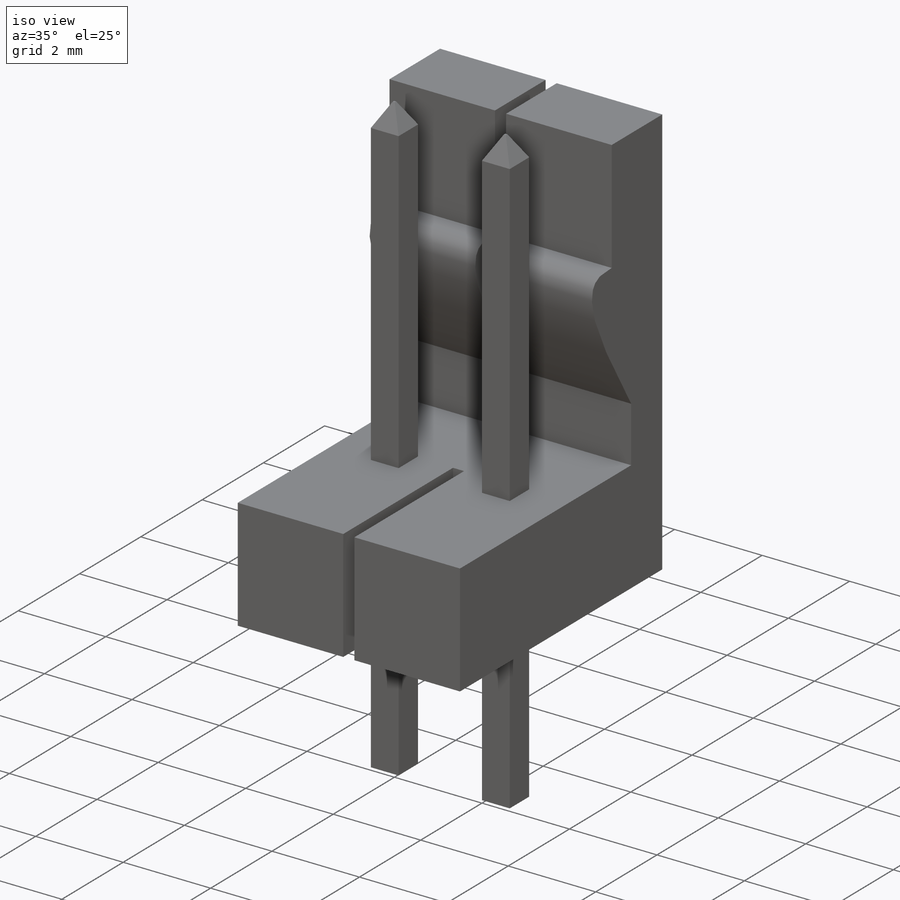
[diagram: iso view]
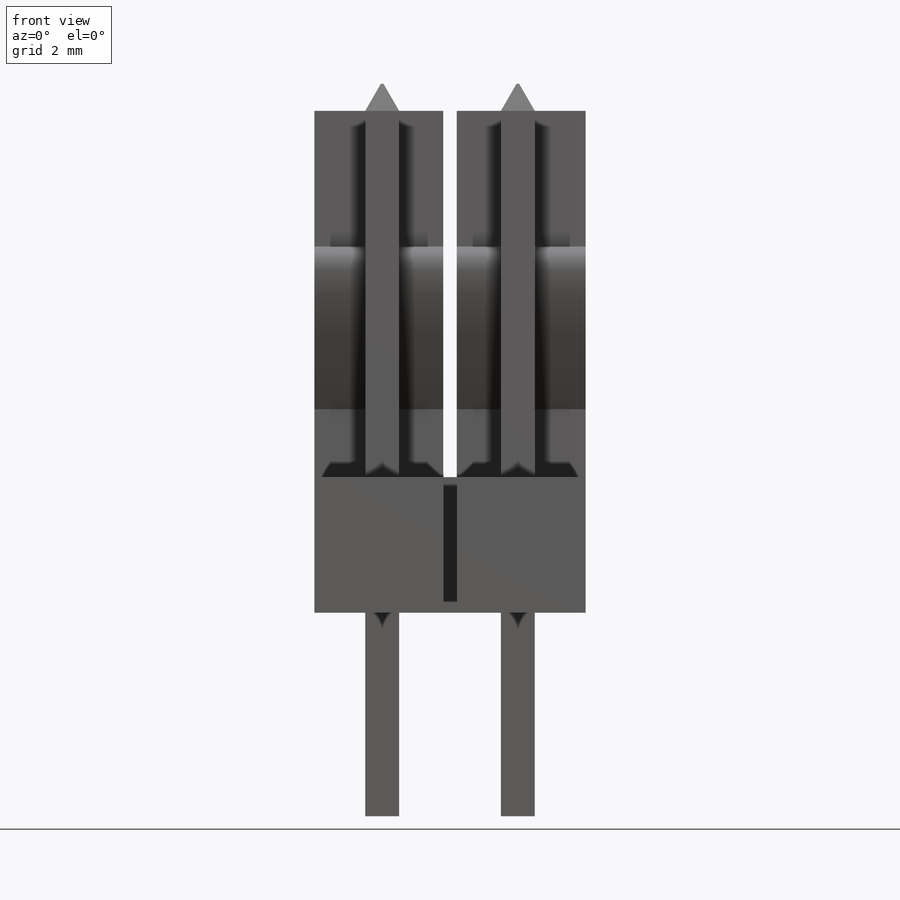
[diagram: front view]
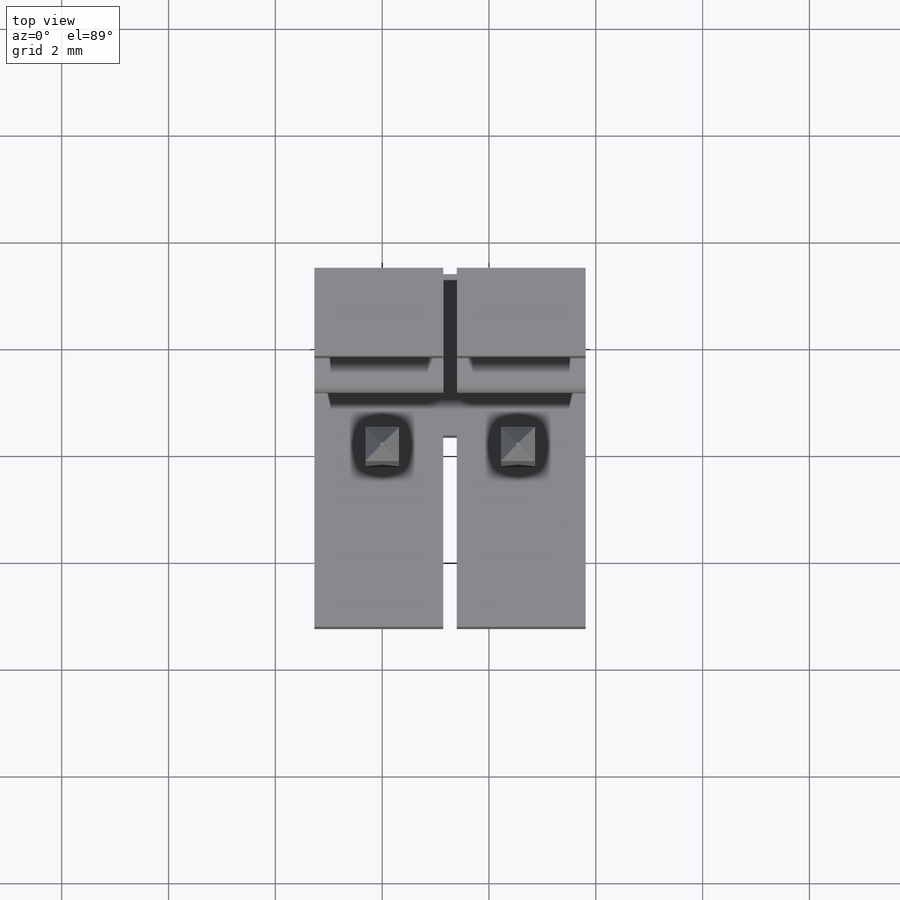
[diagram: top view]
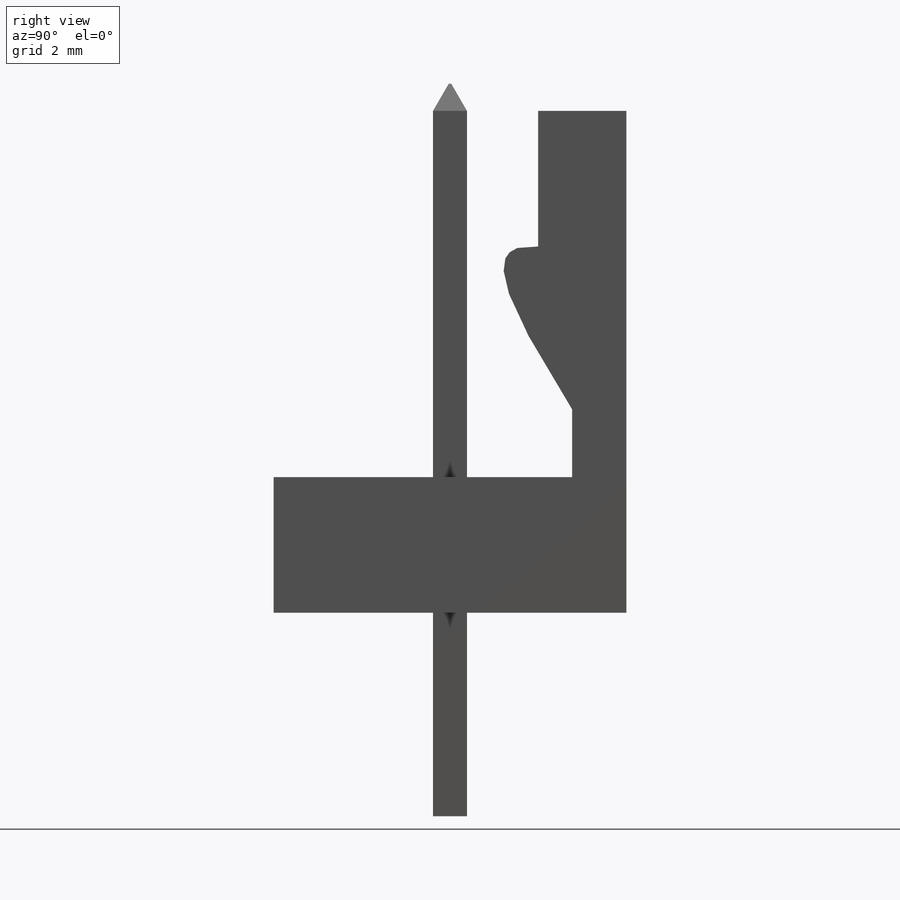
[diagram: right view]
SOLIDWORKS PART (.sldprt)
format: sldprt  version: not decoded by parser v0  size: 226,816 bytes
history: native  units: mm
features: sketch x5, extrude x2, cut_extrude x2, material x1, plane x1, chamfer x1, mirror x1 (+12 scaffold rows collapsed)
feature tree (25):
  scaffold x12  (default folders/planes/origin — collapsed)
  material  "Material <not specified>"
  sketch  "Sketch3"  dims[c1.D1=9.3726mm c1.D2=1.27mm c1.D3=5.08mm c2.D1=9.398mm]
  extrude  "Base-Extrude"  Depth=3.302mm
  sketch  "Sketch4"  dims[D1=1.651mm D2=2.54mm D3=2.54mm D4=1.27mm D5=1.016mm]
  cut_extrude  "Cut-Extrude1"  [1 undecoded]
  plane  "Plane1"  Offset=1.27mm
  sketch  "Sketch5"  dims[D1=3.5814mm]
  cut_extrude  "Cut-Extrude2"  Depth=0.254mm
  sketch  "Sketch6"  dims[D1=0.635mm]
  extrude  "Boss-Extrude1"  Depth=3.81mm
  chamfer  "Chamfer1"  Distance=0.508mm Angle=30deg
  mirror  "Mirror1"
  sketch  "Component_Outline"
decode coverage: 8 of 11 modeling features carry decoded parameters
note: 1 parameter value undecoded
note: suppression state not decoded; provenance and decode notes live in map.json
